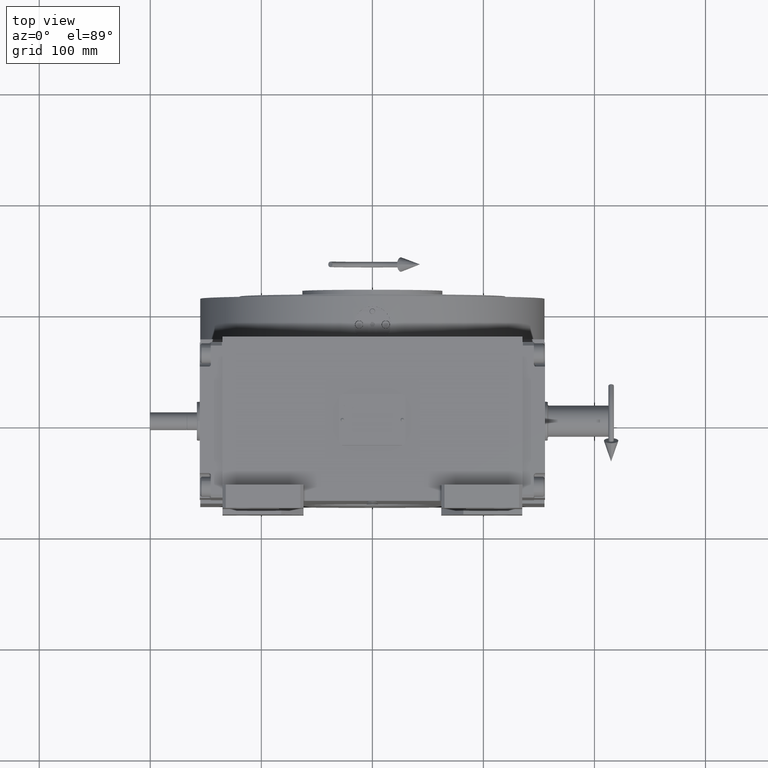
[diagram: clean part render]
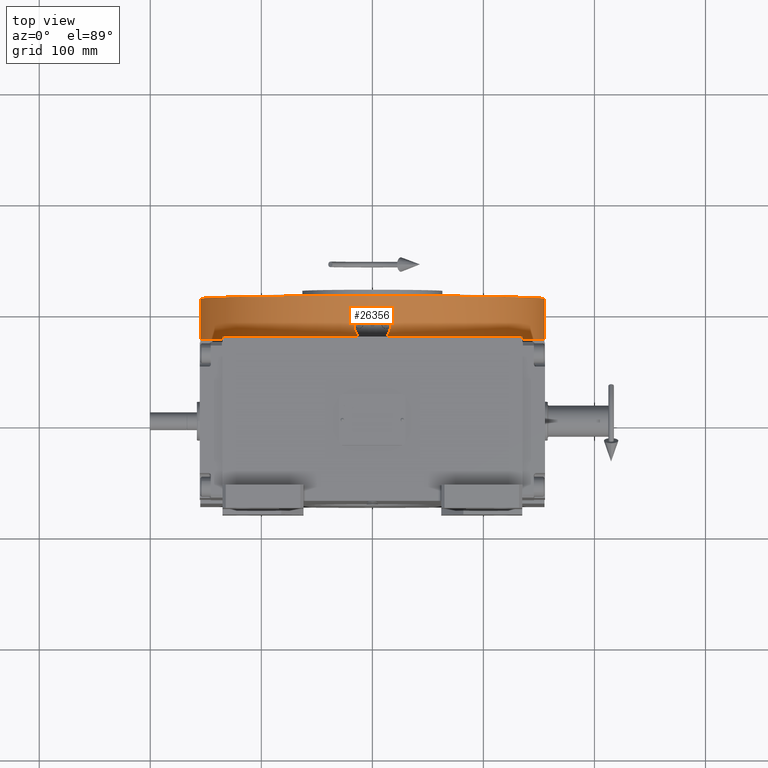
[diagram: same view with one face highlighted and labeled with its STEP entity id]
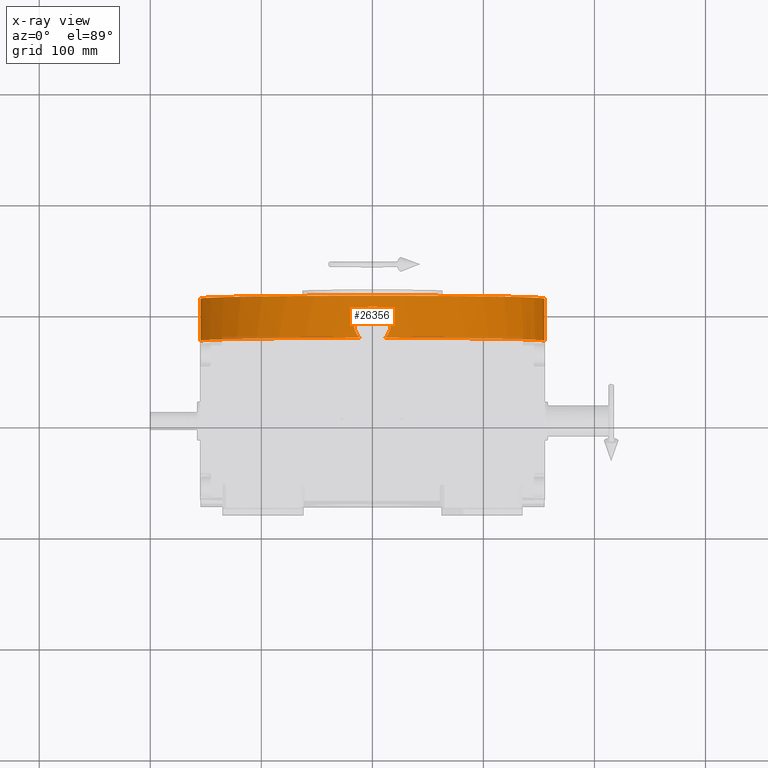
[diagram: x-ray of the same camera — body ghosted, the highlighted face saturated]
A machine part, top view. The second image highlights one B-rep face of the part: STEP entity #26356.
The next image is the same camera in x-ray: the body ghosted, the highlighted face saturated — about 3% of this face is hidden behind the body in this view.
In plain terms, the highlighted cylindrical surface (partial cylindrical patch) has radius 155 mm, axis along (0, 1, 0).
Its self-contained STEP definition (entity closure, byte-faithful):
#257 = CARTESIAN_POINT ( 'NONE',  ( 0.000000000000000000, 0.000000000000000000, 38.00000000000000711 ) ) ;
#1159 = CARTESIAN_POINT ( 'NONE',  ( 13.12279720633661562, -154.4446667571554883, 22.06048731613105929 ) ) ;
#1228 = VECTOR ( 'NONE', #9308, 1000.000000000000000 ) ;
#1503 = CARTESIAN_POINT ( 'NONE',  ( 16.49995917721336269, -154.1193573637430347, 12.00000000688956270 ) ) ;
#1776 = VERTEX_POINT ( 'NONE', #49852 ) ;
#2301 = ORIENTED_EDGE ( 'NONE', *, *, #28584, .F. ) ;
#2611 = LINE ( 'NONE', #14212, #1228 ) ;
#2871 = DIRECTION ( 'NONE',  ( 0.000000000000000000, 0.000000000000000000, 1.000000000000000000 ) ) ;
#4064 = CARTESIAN_POINT ( 'NONE',  ( 14.71187411252618205, -154.3008706713859226, 4.446318010863510750 ) ) ;
#4681 = ORIENTED_EDGE ( 'NONE', *, *, #56954, .T. ) ;
#5064 = CARTESIAN_POINT ( 'NONE',  ( -16.28931234655462035, -154.1417187558310218, 14.68326146040402413 ) ) ;
#5199 = DIRECTION ( 'NONE',  ( 0.000000000000000000, 0.000000000000000000, 1.000000000000000000 ) ) ;
#5394 = CARTESIAN_POINT ( 'NONE',  ( -5.309062898309572454, -154.9122634177804514, 27.65969469683301085 ) ) ;
#5451 = CARTESIAN_POINT ( 'NONE',  ( 16.27357453087221373, -154.1433867451942206, 9.218922373429377259 ) ) ;
#6119 = CARTESIAN_POINT ( 'NONE',  ( 15.45416844923964916, -154.2277916099160393, 17.80606177890279440 ) ) ;
#6812 = CARTESIAN_POINT ( 'NONE',  ( 14.02286187878669566, -154.3646658688130913, 20.71205754263190357 ) ) ;
#7247 = CARTESIAN_POINT ( 'NONE',  ( 0.000000000000000000, 0.000000000000000000, 0.000000000000000000 ) ) ;
#8389 = VECTOR ( 'NONE', #2871, 1000.000000000000000 ) ;
#8633 = ORIENTED_EDGE ( 'NONE', *, *, #23040, .F. ) ;
#9308 = DIRECTION ( 'NONE',  ( 0.000000000000000000, 0.000000000000000000, 1.000000000000000000 ) ) ;
#9999 = CARTESIAN_POINT ( 'NONE',  ( -8.710398745920951313, -154.7557197542369920, 26.02385081294200830 ) ) ;
#10382 = AXIS2_PLACEMENT_3D ( 'NONE', #7247, #23039, #55685 ) ;
#10684 = CARTESIAN_POINT ( 'NONE',  ( -7.294097842296380030, -154.8290142273939409, 26.81007738098103133 ) ) ;
#11375 = CARTESIAN_POINT ( 'NONE',  ( 2.149406513584848355, -154.9860234714047351, 28.36816253932572707 ) ) ;
#11711 = CARTESIAN_POINT ( 'NONE',  ( -11.32475165290999897, -154.5857367287999864, 0.000000000000000000 ) ) ;
#12047 = CARTESIAN_POINT ( 'NONE',  ( -15.59747496492213337, -154.2138668907341525, 6.502732287592812632 ) ) ;
#12068 = CARTESIAN_POINT ( 'NONE',  ( 16.39439426799619071, -154.1306861371135994, 14.15393482542948966 ) ) ;
#12413 = CARTESIAN_POINT ( 'NONE',  ( 14.81083927273900969, -154.2909732312324707, 19.29245037312113809 ) ) ;
#12763 = CARTESIAN_POINT ( 'NONE',  ( 2.685035500526933738, -154.9776442185808776, 28.28891912727422309 ) ) ;
#12764 = DIRECTION ( 'NONE',  ( 0.000000000000000000, 0.000000000000000000, 1.000000000000000000 ) ) ;
#14212 = CARTESIAN_POINT ( 'NONE',  ( 155.0000000000000000, -1.898181641927000027E-14, 0.000000000000000000 ) ) ;
#14610 = B_SPLINE_CURVE_WITH_KNOTS ( 'NONE', 3,
 ( #11711, #38736, #43632, #38377, #65092, #64404, #16274, #12047, #33472, #59808, #21530, #48538, #33138, #38035 ),
 .UNSPECIFIED., .F., .F.,
 ( 4, 2, 2, 2, 2, 2, 4 ),
 ( 0.000000000000000000, 0.02133525514930627656, 0.04267051029861255312, 0.08534102059722507849, 0.1280115308958376108, 0.1493467860451438700, 0.1706820411944501292 ),
 .UNSPECIFIED. ) ;
#15164 = CARTESIAN_POINT ( 'NONE',  ( -11.32475165290999897, -154.5857367287999864, 0.000000000000000000 ) ) ;
#15269 = CARTESIAN_POINT ( 'NONE',  ( -16.36816079430261084, -154.1333387571441449, 14.15062605043702959 ) ) ;
#15319 = CARTESIAN_POINT ( 'NONE',  ( 11.73333306880150495, -154.5558045813984336, 0.3855902554139045701 ) ) ;
#15362 = ORIENTED_EDGE ( 'NONE', *, *, #26722, .T. ) ;
#15657 = CARTESIAN_POINT ( 'NONE',  ( 15.59739717417918392, -154.2138746392213875, 6.502572579891363169 ) ) ;
#16274 = CARTESIAN_POINT ( 'NONE',  ( -14.71186955414902009, -154.3008712253308943, 4.446158355349954405 ) ) ;
#16634 = CARTESIAN_POINT ( 'NONE',  ( 10.90286735625305070, -154.6179674517312037, 24.43166022878835619 ) ) ;
#16983 = CARTESIAN_POINT ( 'NONE',  ( -0.5390935379411242456, -155.0000008651816756, 28.50000553285605420 ) ) ;
#17534 = ORIENTED_EDGE ( 'NONE', *, *, #39555, .T. ) ;
#17669 = CARTESIAN_POINT ( 'NONE',  ( 6.804908101104747864, -154.8513549216870047, 27.04104868677902473 ) ) ;
#18438 = CIRCLE ( 'NONE', #48693, 155.0000000000000000 ) ;
#20873 = CARTESIAN_POINT ( 'NONE',  ( -16.47347441674796542, -154.1221186100601415, 13.07788093233711990 ) ) ;
#20894 = VERTEX_POINT ( 'NONE', #45860 ) ;
#21530 = CARTESIAN_POINT ( 'NONE',  ( -16.35841010258596029, -154.1343753264042959, 9.771570267182383418 ) ) ;
#21629 = CARTESIAN_POINT ( 'NONE',  ( -155.0000000000000000, 3.796342387102999398E-14, 0.000000000000000000 ) ) ;
#21902 = CARTESIAN_POINT ( 'NONE',  ( -2.684587958510955996, -154.9776520191678060, 28.28899123199289889 ) ) ;
#22618 = CARTESIAN_POINT ( 'NONE',  ( -16.49998233661029090, -154.1193022417044460, 12.00000001812405870 ) ) ;
#23039 = DIRECTION ( 'NONE',  ( 0.000000000000000000, 0.000000000000000000, 1.000000000000000000 ) ) ;
#23040 = EDGE_CURVE ( 'NONE', #42050, #38261, #45002, .T. ) ;
#23280 = CARTESIAN_POINT ( 'NONE',  ( 14.30170672093714401, -154.3389988482240085, 20.24608490011583228 ) ) ;
#24942 = AXIS2_PLACEMENT_3D ( 'NONE', #50290, #12764, #43654 ) ;
#25478 = CARTESIAN_POINT ( 'NONE',  ( 12.85405420613797212, -154.4665288897264759, 1.639735500227976761 ) ) ;
#25777 = CARTESIAN_POINT ( 'NONE',  ( -10.90238920086943253, -154.6180015530145511, 24.43207579448705147 ) ) ;
#25832 = CARTESIAN_POINT ( 'NONE',  ( 16.49992246166192089, -154.1192802953580951, 11.44157901925919241 ) ) ;
#26279 = DIRECTION ( 'NONE',  ( -1.000000000000000000, 0.000000000000000000, 0.000000000000000000 ) ) ;
#26356 = ADVANCED_FACE ( 'NONE', ( #45106 ), #38836, .T. ) ;
#26722 = EDGE_CURVE ( 'NONE', #45990, #37970, #51225, .T. ) ;
#26804 = CARTESIAN_POINT ( 'NONE',  ( -4.270670968859515249, -154.9447640967602808, 27.97426397904146356 ) ) ;
#26858 = CARTESIAN_POINT ( 'NONE',  ( 15.93462759401248796, -154.1789196505203847, 7.574197844632982068 ) ) ;
#27152 = CARTESIAN_POINT ( 'NONE',  ( -16.07920685589499143, -154.1637774076992855, 15.74105798217210328 ) ) ;
#27508 = CARTESIAN_POINT ( 'NONE',  ( 16.07944229175783590, -154.1637528043282259, 15.74008504191706415 ) ) ;
#27541 = CARTESIAN_POINT ( 'NONE',  ( 0.000000000000000000, 0.000000000000000000, 0.000000000000000000 ) ) ;
#27784 = VERTEX_POINT ( 'NONE', #61069 ) ;
#28584 = EDGE_CURVE ( 'NONE', #38261, #1776, #18438, .T. ) ;
#29670 = EDGE_CURVE ( 'NONE', #62388, #45990, #14610, .T. ) ;
#31077 = CARTESIAN_POINT ( 'NONE',  ( -14.30134451282896002, -154.3390324787075656, 20.24669562453046012 ) ) ;
#31425 = CARTESIAN_POINT ( 'NONE',  ( -16.49998233661029090, -154.1193022417044460, 12.00000001812405870 ) ) ;
#32154 = CARTESIAN_POINT ( 'NONE',  ( 16.35834379686392026, -154.1343823576824548, 9.770764172154200011 ) ) ;
#32804 = CARTESIAN_POINT ( 'NONE',  ( 8.710829171276920135, -154.7556956243912794, 26.02358424626103428 ) ) ;
#33138 = CARTESIAN_POINT ( 'NONE',  ( -16.49998406553928021, -154.1192737000707496, 11.44193956501975151 ) ) ;
#33472 = CARTESIAN_POINT ( 'NONE',  ( -15.93480398042398605, -154.1789013208416463, 7.575224915596185937 ) ) ;
#33495 = CARTESIAN_POINT ( 'NONE',  ( 7.294570994031262856, -154.8289918631883495, 26.80984615217579758 ) ) ;
#34183 = CARTESIAN_POINT ( 'NONE',  ( 15.94805856842614133, -154.1774434893680450, 16.26583947859815638 ) ) ;
#34479 = CIRCLE ( 'NONE', #50142, 155.0000000000000000 ) ;
#36334 = CARTESIAN_POINT ( 'NONE',  ( -15.04104416391116672, -154.2686293629195120, 18.80506493828264780 ) ) ;
#37356 = CARTESIAN_POINT ( 'NONE',  ( -12.43230435225374642, -154.5025122871086865, 22.90209557148281405 ) ) ;
#37970 = VERTEX_POINT ( 'NONE', #38829 ) ;
#38035 = CARTESIAN_POINT ( 'NONE',  ( -16.49998233661029090, -154.1193022417044460, 12.00000001812405870 ) ) ;
#38048 = EDGE_CURVE ( 'NONE', #27784, #1776, #2611, .T. ) ;
#38050 = CARTESIAN_POINT ( 'NONE',  ( -155.0000000000000000, 3.796342387102999398E-14, 38.00000000000000711 ) ) ;
#38057 = CARTESIAN_POINT ( 'NONE',  ( -1.076815924736641117, -154.9971866634110427, 28.47365119519368193 ) ) ;
#38171 = ORIENTED_EDGE ( 'NONE', *, *, #38048, .T. ) ;
#38261 = VERTEX_POINT ( 'NONE', #38050 ) ;
#38377 = CARTESIAN_POINT ( 'NONE',  ( -12.85408490202133613, -154.4665264488709226, 1.639808836066521280 ) ) ;
#38736 = CARTESIAN_POINT ( 'NONE',  ( -11.73327428822755891, -154.5558088875874603, 0.3855347824635598220 ) ) ;
#38829 = CARTESIAN_POINT ( 'NONE',  ( 16.49995917721336269, -154.1193573637430347, 12.00000000688956270 ) ) ;
#38836 = CYLINDRICAL_SURFACE ( 'NONE', #10382, 155.0000000000000000 ) ;
#39087 = CARTESIAN_POINT ( 'NONE',  ( 10.06302999523547292, -154.6756313046001026, 25.12071950621989913 ) ) ;
#39555 = EDGE_CURVE ( 'NONE', #20894, #27784, #50694, .T. ) ;
#41589 = CARTESIAN_POINT ( 'NONE',  ( -15.63543345909815585, -154.2094610502056753, 17.29859132476287442 ) ) ;
#42050 = VERTEX_POINT ( 'NONE', #21629 ) ;
#42268 = CARTESIAN_POINT ( 'NONE',  ( -15.94784929967946852, -154.1774651483267178, 16.26664953830242766 ) ) ;
#43296 = CARTESIAN_POINT ( 'NONE',  ( 4.271076726543375557, -154.9447527227574994, 27.97415292169609913 ) ) ;
#43632 = CARTESIAN_POINT ( 'NONE',  ( -12.12083535963226311, -154.5257928050614566, 0.7906035061695759758 ) ) ;
#43654 = DIRECTION ( 'NONE',  ( 0.07306291388971911105, -0.9973273337344883416, 0.000000000000000000 ) ) ;
#44030 = DIRECTION ( 'NONE',  ( -1.000000000000000000, 0.000000000000000000, 0.000000000000000000 ) ) ;
#45002 = LINE ( 'NONE', #61550, #8389 ) ;
#45106 = FACE_OUTER_BOUND ( 'NONE', #59829, .T. ) ;
#45280 = ORIENTED_EDGE ( 'NONE', *, *, #52273, .T. ) ;
#45860 = CARTESIAN_POINT ( 'NONE',  ( 11.32475165290999897, -154.5857367287999864, 0.000000000000000000 ) ) ;
#45990 = VERTEX_POINT ( 'NONE', #22618 ) ;
#46776 = ORIENTED_EDGE ( 'NONE', *, *, #29670, .T. ) ;
#47224 = CARTESIAN_POINT ( 'NONE',  ( 12.12089972014433314, -154.5257876431932402, 0.7906554065422800592 ) ) ;
#47859 = CARTESIAN_POINT ( 'NONE',  ( -13.12243075888235921, -154.4446979382173026, 22.06095570414272444 ) ) ;
#48258 = CARTESIAN_POINT ( 'NONE',  ( 14.16350684025821316, -154.3528773885687428, 3.461629325670642743 ) ) ;
#48538 = CARTESIAN_POINT ( 'NONE',  ( -16.47158299025702632, -154.1223221734617255, 10.88278899042149028 ) ) ;
#48693 = AXIS2_PLACEMENT_3D ( 'NONE', #257, #5199, #26279 ) ;
#49258 = CARTESIAN_POINT ( 'NONE',  ( 5.309465047980734376, -154.9122498780884882, 27.65956347238378399 ) ) ;
#49852 = CARTESIAN_POINT ( 'NONE',  ( 155.0000000000000000, -1.898139848424999979E-14, 38.00000000000000711 ) ) ;
#50142 = AXIS2_PLACEMENT_3D ( 'NONE', #27541, #54930, #44030 ) ;
#50290 = CARTESIAN_POINT ( 'NONE',  ( 0.000000000000000000, 0.000000000000000000, 0.000000000000000000 ) ) ;
#50694 = CIRCLE ( 'NONE', #24942, 154.9999999999999716 ) ;
#51225 = B_SPLINE_CURVE_WITH_KNOTS ( 'NONE', 3,
 ( #31425, #64075, #20873, #15269, #5064, #27152, #42268, #41589, #58104, #36334, #57762, #31077, #52460, #47859, #37356, #25777, #63730, #9999, #58789, #10684, #53494, #5394, #26804, #21902, #60880, #38057, #16983, #60181, #59833, #11375, #12763, #43296, #49258, #17669, #33495, #66150, #32804, #39087, #16634, #64760, #1159, #6812, #23280, #12413, #59475, #6119, #54196, #34183, #27508, #12068, #54896, #1503 ),
 .UNSPECIFIED., .F., .F.,
 ( 4, 2, 2, 2, 2, 2, 2, 2, 2, 2, 2, 2, 2, 2, 2, 2, 2, 2, 2, 2, 2, 2, 2, 2, 2, 4 ),
 ( 0.1706820411944501292, 0.1912591610584686019, 0.2118362809224871024, 0.2324134007865055751, 0.2529905206505240756, 0.2735676405145425205, 0.2941447603785610210, 0.3352990001065978554, 0.3764532398346347453, 0.3970303596986531347, 0.4176074795626716352, 0.4587617192907084696, 0.4793388391547269145, 0.4999159590187454150, 0.5204930788827639709, 0.5410701987467823049, 0.5822244384748193058, 0.6028015583388377507, 0.6233786782028563067, 0.6645329179308931966, 0.7056871576589300865, 0.7262642775229486425, 0.7468413973869671985, 0.7674185172509855324, 0.7879956371150040884, 0.8291498768430409783 ),
 .UNSPECIFIED. ) ;
#52273 = EDGE_CURVE ( 'NONE', #37970, #20894, #64100, .T. ) ;
#52460 = CARTESIAN_POINT ( 'NONE',  ( -14.02251297831739585, -154.3646975747211343, 20.71261755575151042 ) ) ;
#53494 = CARTESIAN_POINT ( 'NONE',  ( -6.804449563144633117, -154.8513750105633449, 27.04126009729906599 ) ) ;
#54196 = CARTESIAN_POINT ( 'NONE',  ( 15.63566703618283604, -154.2094373550232547, 17.29791062638470578 ) ) ;
#54896 = CARTESIAN_POINT ( 'NONE',  ( 16.49991043964675086, -154.1192815824279307, 13.07609595853627482 ) ) ;
#54930 = DIRECTION ( 'NONE',  ( 0.000000000000000000, 0.000000000000000000, 1.000000000000000000 ) ) ;
#55685 = DIRECTION ( 'NONE',  ( 1.000000000000000000, 0.000000000000000000, 0.000000000000000000 ) ) ;
#56954 = EDGE_CURVE ( 'NONE', #42050, #62388, #34479, .T. ) ;
#57762 = CARTESIAN_POINT ( 'NONE',  ( -14.81055788990334321, -154.2910003089227757, 19.29301661750615082 ) ) ;
#58104 = CARTESIAN_POINT ( 'NONE',  ( -15.45383373645091218, -154.2278251091570098, 17.80693722841294502 ) ) ;
#58789 = CARTESIAN_POINT ( 'NONE',  ( -8.246858410088949043, -154.7811901890003412, 26.30146125159406623 ) ) ;
#59475 = CARTESIAN_POINT ( 'NONE',  ( 15.04132006578126557, -154.2686025022846081, 18.80444574887851772 ) ) ;
#59808 = CARTESIAN_POINT ( 'NONE',  ( -16.27364987442522093, -154.1433787658870358, 9.219688347690263797 ) ) ;
#59829 = EDGE_LOOP ( 'NONE', ( #17534, #38171, #2301, #8633, #4681, #46776, #15362, #45280 ) ) ;
#59833 = CARTESIAN_POINT ( 'NONE',  ( 1.077233577524535413, -154.9971838055740818, 28.47362586541065355 ) ) ;
#60181 = CARTESIAN_POINT ( 'NONE',  ( 0.5395909367066812345, -154.9999991344193120, 28.49999439215257269 ) ) ;
#60880 = CARTESIAN_POINT ( 'NONE',  ( -2.148963280061153114, -154.9860295734070803, 28.36822270384071132 ) ) ;
#61069 = CARTESIAN_POINT ( 'NONE',  ( 155.0000000000000000, -1.898139848424999979E-14, 0.000000000000000000 ) ) ;
#61550 = CARTESIAN_POINT ( 'NONE',  ( -155.0000000000000000, 1.898181641927000027E-14, 0.000000000000000000 ) ) ;
#62388 = VERTEX_POINT ( 'NONE', #15164 ) ;
#63097 = CARTESIAN_POINT ( 'NONE',  ( 16.49995917721336269, -154.1193573637430347, 12.00000000688956270 ) ) ;
#63730 = CARTESIAN_POINT ( 'NONE',  ( -10.06250006711099587, -154.6756653913563753, 25.12111237511009421 ) ) ;
#64075 = CARTESIAN_POINT ( 'NONE',  ( -16.49994596999610508, -154.1192777785686019, 12.53823013427945376 ) ) ;
#64100 = B_SPLINE_CURVE_WITH_KNOTS ( 'NONE', 3,
 ( #63097, #25832, #69057, #32154, #5451, #26858, #15657, #4064, #48258, #69390, #25478, #47224, #15319, #68357 ),
 .UNSPECIFIED., .F., .F.,
 ( 4, 2, 2, 2, 2, 2, 4 ),
 ( 0.8291498768430409783, 0.8505061422376608560, 0.8718624076322808447, 0.9145749384215206002, 0.9572874692107602446, 0.9786437346053801223, 1.000000000000000000 ),
 .UNSPECIFIED. ) ;
#64404 = CARTESIAN_POINT ( 'NONE',  ( -14.16349452285378874, -154.3528783872963288, 3.461613631622395104 ) ) ;
#64760 = CARTESIAN_POINT ( 'NONE',  ( 12.43262746237155270, -154.5024859019250130, 22.90171598535045305 ) ) ;
#65092 = CARTESIAN_POINT ( 'NONE',  ( -13.20012473331006575, -154.4372384430344027, 2.084379910846553496 ) ) ;
#66150 = CARTESIAN_POINT ( 'NONE',  ( 8.247284097151625915, -154.7811674344753783, 26.30121859278279928 ) ) ;
#68357 = CARTESIAN_POINT ( 'NONE',  ( 11.32475165290999897, -154.5857367287999864, 0.000000000000000000 ) ) ;
#69057 = CARTESIAN_POINT ( 'NONE',  ( 16.47148550261519162, -154.1223325864807236, 10.88164834785590074 ) ) ;
#69390 = CARTESIAN_POINT ( 'NONE',  ( 13.20008998802703104, -154.4372414456569516, 2.084309618181268142 ) ) ;